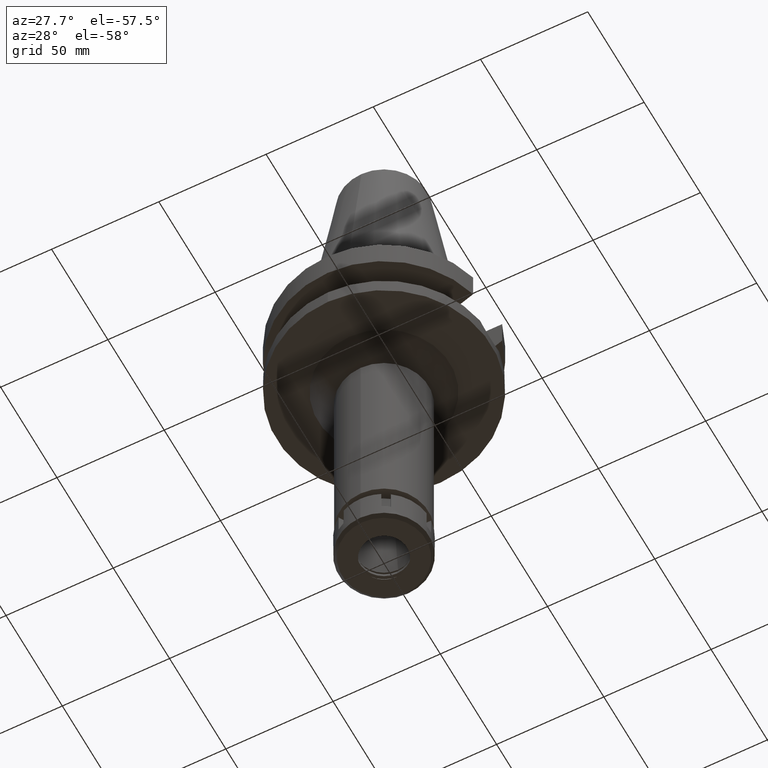
[diagram: clean part render]
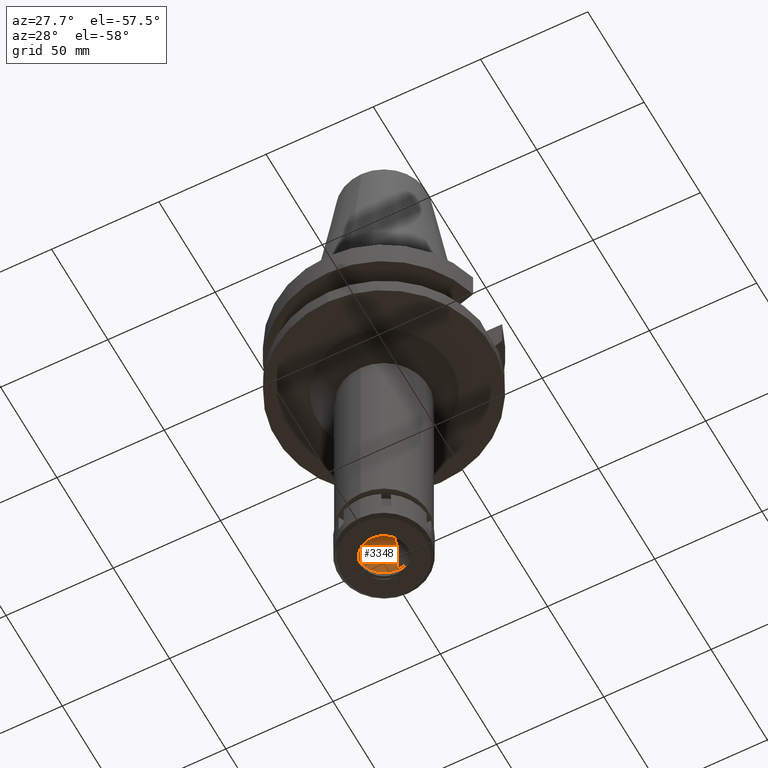
[diagram: same view with one face highlighted and labeled with its STEP entity id]
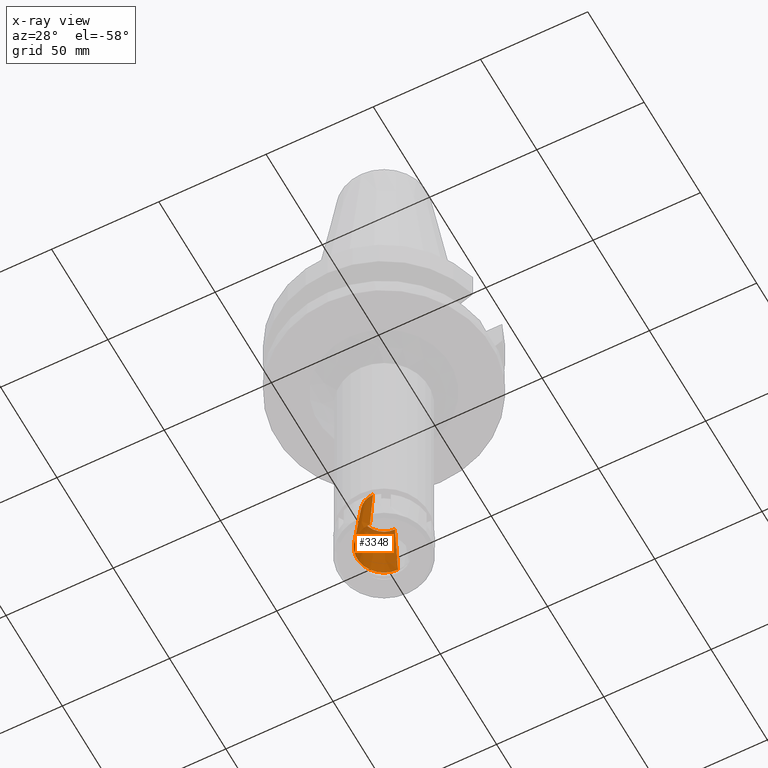
[diagram: x-ray of the same camera — body ghosted, the highlighted face saturated]
A machine part, auxiliary view. The second image highlights one B-rep face of the part: STEP entity #3348.
The next image is the same camera in x-ray: the body ghosted, the highlighted face saturated — about 9% of this face is hidden behind the body in this view.
In plain terms, the highlighted conical surface has half-angle 6 deg.
Its self-contained STEP definition (entity closure, byte-faithful):
#11 = EDGE_CURVE ( 'NONE', #2697, #19, #2675, .T. ) ;
#19 = VERTEX_POINT ( 'NONE', #625 ) ;
#181 = AXIS2_PLACEMENT_3D ( 'NONE', #850, #3681, #886 ) ;
#382 = ORIENTED_EDGE ( 'NONE', *, *, #1353, .T. ) ;
#503 = CARTESIAN_POINT ( 'NONE',  ( 0.0000000000000000000, 12.50000000000000000, -157.0000000000000000 ) ) ;
#608 = CARTESIAN_POINT ( 'NONE',  ( 0.0000000000000000000, 0.0000000000000000000, -157.0000000000000000 ) ) ;
#625 = CARTESIAN_POINT ( 'NONE',  ( 0.0000000000000000000, 9.662185647822997936, -130.0000000000000000 ) ) ;
#651 = CONICAL_SURFACE ( 'NONE', #181, 11.08109282390999972, 0.1047197551196402399 ) ;
#783 = ORIENTED_EDGE ( 'NONE', *, *, #2169, .F. ) ;
#850 = CARTESIAN_POINT ( 'NONE',  ( 0.0000000000000000000, 0.0000000000000000000, -143.5000000000000000 ) ) ;
#886 = DIRECTION ( 'NONE',  ( 0.0000000000000000000, -1.000000000000000000, 0.0000000000000000000 ) ) ;
#890 = LINE ( 'NONE', #3182, #3333 ) ;
#914 = CARTESIAN_POINT ( 'NONE',  ( 0.0000000000000000000, 12.50000000000000000, -157.0000000000000000 ) ) ;
#947 = DIRECTION ( 'NONE',  ( 0.0000000000000000000, 0.1045284632676965891, 0.9945218953682687379 ) ) ;
#1057 = ORIENTED_EDGE ( 'NONE', *, *, #3435, .T. ) ;
#1201 = CIRCLE ( 'NONE', #2748, 9.662185647822997936 ) ;
#1353 = EDGE_CURVE ( 'NONE', #2544, #2697, #1955, .T. ) ;
#1409 = DIRECTION ( 'NONE',  ( 0.0000000000000000000, -1.000000000000000000, 0.0000000000000000000 ) ) ;
#1462 = CARTESIAN_POINT ( 'NONE',  ( 0.0000000000000000000, -9.662185647822997936, -130.0000000000000000 ) ) ;
#1549 = EDGE_LOOP ( 'NONE', ( #1057, #783, #382, #3567 ) ) ;
#1746 = DIRECTION ( 'NONE',  ( 0.0000000000000000000, 0.0000000000000000000, -1.000000000000000000 ) ) ;
#1774 = CARTESIAN_POINT ( 'NONE',  ( 0.0000000000000000000, 0.0000000000000000000, -130.0000000000000000 ) ) ;
#1955 = CIRCLE ( 'NONE', #2676, 12.50000000000000000 ) ;
#2064 = VECTOR ( 'NONE', #3527, 1000.000000000000227 ) ;
#2169 = EDGE_CURVE ( 'NONE', #2544, #3470, #890, .T. ) ;
#2544 = VERTEX_POINT ( 'NONE', #2813 ) ;
#2624 = FACE_OUTER_BOUND ( 'NONE', #1549, .T. ) ;
#2675 = LINE ( 'NONE', #914, #2064 ) ;
#2676 = AXIS2_PLACEMENT_3D ( 'NONE', #608, #1746, #1409 ) ;
#2697 = VERTEX_POINT ( 'NONE', #503 ) ;
#2748 = AXIS2_PLACEMENT_3D ( 'NONE', #1774, #2901, #3403 ) ;
#2813 = CARTESIAN_POINT ( 'NONE',  ( 0.0000000000000000000, -12.50000000000000000, -157.0000000000000000 ) ) ;
#2901 = DIRECTION ( 'NONE',  ( 0.0000000000000000000, 0.0000000000000000000, 1.000000000000000000 ) ) ;
#3182 = CARTESIAN_POINT ( 'NONE',  ( 0.0000000000000000000, -12.50000000000000000, -157.0000000000000000 ) ) ;
#3333 = VECTOR ( 'NONE', #947, 1000.000000000000227 ) ;
#3348 = ADVANCED_FACE ( 'NONE', ( #2624 ), #651, .F. ) ;
#3403 = DIRECTION ( 'NONE',  ( 0.0000000000000000000, 1.000000000000000000, 0.0000000000000000000 ) ) ;
#3435 = EDGE_CURVE ( 'NONE', #19, #3470, #1201, .T. ) ;
#3470 = VERTEX_POINT ( 'NONE', #1462 ) ;
#3527 = DIRECTION ( 'NONE',  ( 0.0000000000000000000, -0.1045284632676965891, 0.9945218953682687379 ) ) ;
#3567 = ORIENTED_EDGE ( 'NONE', *, *, #11, .T. ) ;
#3681 = DIRECTION ( 'NONE',  ( 0.0000000000000000000, 0.0000000000000000000, -1.000000000000000000 ) ) ;